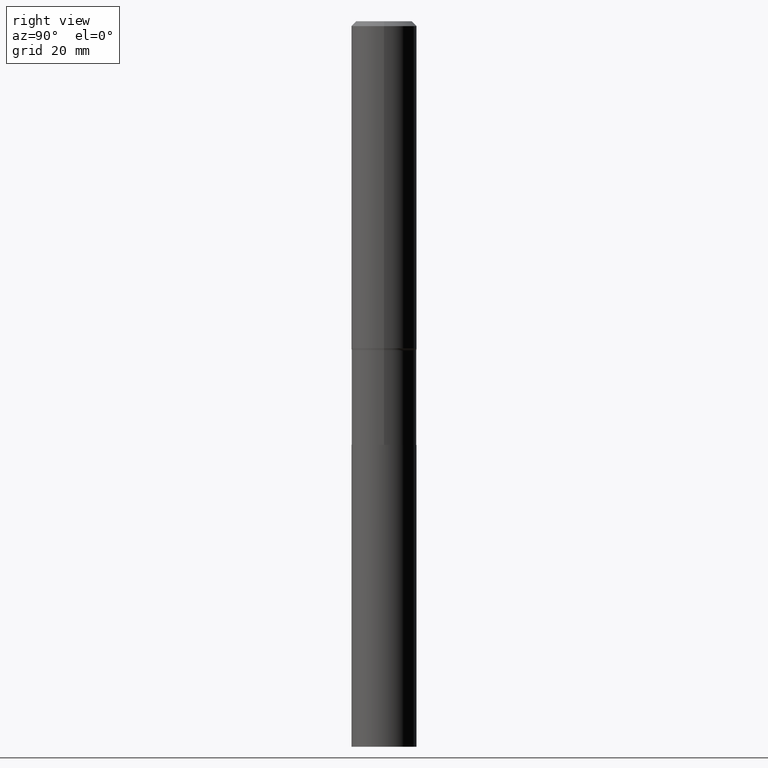
[diagram: clean part render]
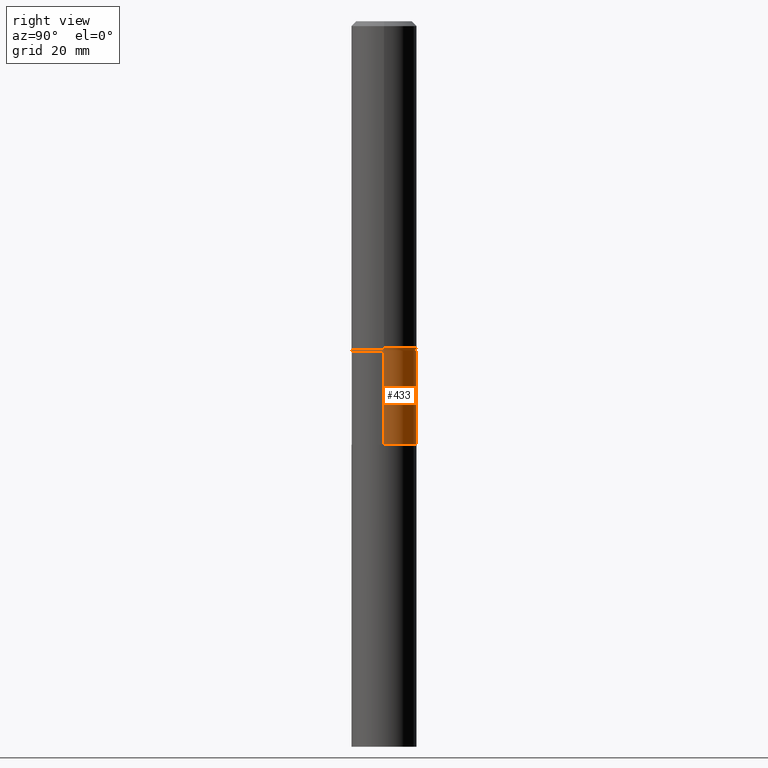
[diagram: same view with one face highlighted and labeled with its STEP entity id]
A machine part, right view. The second image highlights one B-rep face of the part: STEP entity #433.
In plain terms, the highlighted cylindrical surface (edge-blend (fillet) strip) has radius 6.9456 mm, axis along (-0, 0, 1).
Its self-contained STEP definition (entity closure, byte-faithful):
#30 = DIRECTION ( 'NONE',  ( -2.445468806185136877E-29, 3.491481338843145188E-15, 1.000000000000000000 ) ) ;
#40 = VECTOR ( 'NONE', #123, 39.37007874015748143 ) ;
#45 = EDGE_CURVE ( 'NONE', #276, #75, #88, .T. ) ;
#69 = ORIENTED_EDGE ( 'NONE', *, *, #394, .T. ) ;
#75 = VERTEX_POINT ( 'NONE', #246 ) ;
#76 = DIRECTION ( 'NONE',  ( 1.000000000000000000, -6.982962677686264344E-15, 0.000000000000000000 ) ) ;
#88 = CIRCLE ( 'NONE', #112, 0.2734499999999999154 ) ;
#95 = LINE ( 'NONE', #355, #411 ) ;
#98 = CARTESIAN_POINT ( 'NONE',  ( 8.712960809557023143E-29, -1.243979886216424317E-14, -3.562899999999999956 ) ) ;
#109 = EDGE_CURVE ( 'NONE', #467, #276, #381, .T. ) ;
#111 = DIRECTION ( 'NONE',  ( 1.000000000000000000, -6.982962677686267499E-15, 0.000000000000000000 ) ) ;
#112 = AXIS2_PLACEMENT_3D ( 'NONE', #228, #307, #111 ) ;
#115 = ORIENTED_EDGE ( 'NONE', *, *, #109, .F. ) ;
#123 = DIRECTION ( 'NONE',  ( -2.445468806185136877E-29, 3.491481338843145188E-15, 1.000000000000000000 ) ) ;
#135 = AXIS2_PLACEMENT_3D ( 'NONE', #98, #301, #76 ) ;
#155 = FACE_OUTER_BOUND ( 'NONE', #380, .T. ) ;
#190 = CARTESIAN_POINT ( 'NONE',  ( 0.000000000000000000, 0.000000000000000000, 0.000000000000000000 ) ) ;
#213 = EDGE_CURVE ( 'NONE', #467, #310, #325, .T. ) ;
#220 = CARTESIAN_POINT ( 'NONE',  ( -0.2734500000000000819, -9.113320270711650646E-15, -3.562899999999999956 ) ) ;
#228 = CARTESIAN_POINT ( 'NONE',  ( 6.774926780655301628E-29, -9.672799901131050360E-15, -2.770399999999999974 ) ) ;
#231 = DIRECTION ( 'NONE',  ( -2.445468806185136597E-29, 3.491481338843145583E-15, 1.000000000000000000 ) ) ;
#246 = CARTESIAN_POINT ( 'NONE',  ( -0.2734499999999999154, -9.113320270711650646E-15, -2.770399999999999974 ) ) ;
#276 = VERTEX_POINT ( 'NONE', #296 ) ;
#295 = ORIENTED_EDGE ( 'NONE', *, *, #45, .F. ) ;
#296 = CARTESIAN_POINT ( 'NONE',  ( 0.2734499999999999154, -1.158229104534435959E-14, -2.770399999999999974 ) ) ;
#301 = DIRECTION ( 'NONE',  ( -2.445468806185136597E-29, 3.491481338843145583E-15, 1.000000000000000000 ) ) ;
#307 = DIRECTION ( 'NONE',  ( -2.445468806185136597E-29, 3.491481338843145583E-15, 1.000000000000000000 ) ) ;
#308 = DIRECTION ( 'NONE',  ( 1.000000000000000000, -6.982962677686267499E-15, 4.876176775795935793E-29 ) ) ;
#310 = VERTEX_POINT ( 'NONE', #220 ) ;
#325 = CIRCLE ( 'NONE', #135, 0.2734500000000000264 ) ;
#355 = CARTESIAN_POINT ( 'NONE',  ( -0.2734499999999999709, 1.942979110935993751E-15, -1.345082800430203888E-29 ) ) ;
#377 = ORIENTED_EDGE ( 'NONE', *, *, #213, .T. ) ;
#380 = EDGE_LOOP ( 'NONE', ( #377, #69, #295, #115 ) ) ;
#381 = LINE ( 'NONE', #460, #40 ) ;
#394 = EDGE_CURVE ( 'NONE', #310, #75, #95, .T. ) ;
#408 = CARTESIAN_POINT ( 'NONE',  ( 0.2734500000000000264, -1.434929000637755398E-14, -3.562899999999999956 ) ) ;
#411 = VECTOR ( 'NONE', #30, 39.37007874015748143 ) ;
#433 = ADVANCED_FACE ( 'NONE', ( #155 ), #438, .T. ) ;
#438 = CYLINDRICAL_SURFACE ( 'NONE', #457, 0.2734499999999999709 ) ;
#457 = AXIS2_PLACEMENT_3D ( 'NONE', #190, #231, #308 ) ;
#460 = CARTESIAN_POINT ( 'NONE',  ( 0.2734499999999999709, -1.909491144213309629E-15, 1.333390539341398475E-29 ) ) ;
#467 = VERTEX_POINT ( 'NONE', #408 ) ;